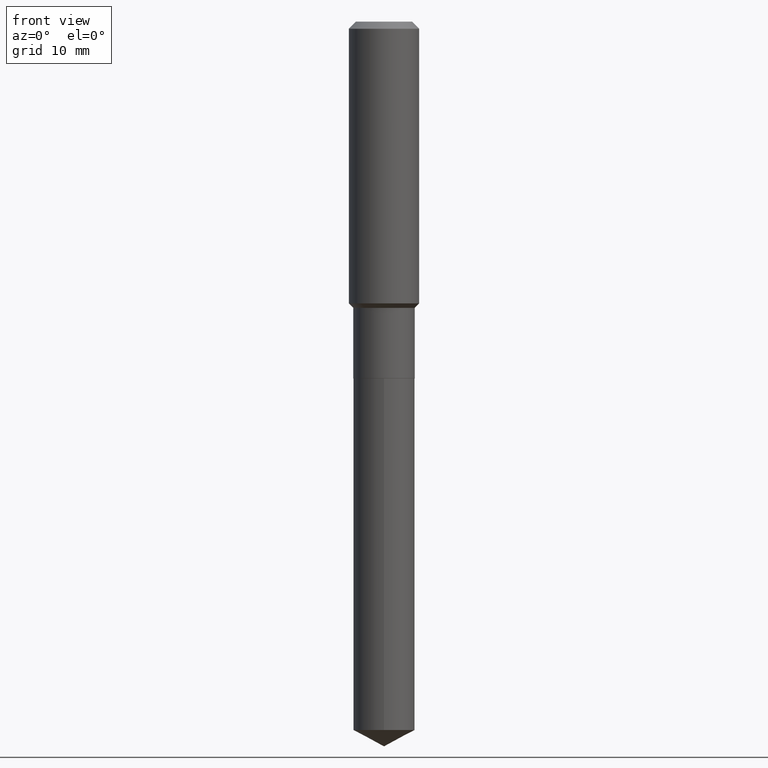
[diagram: clean part render]
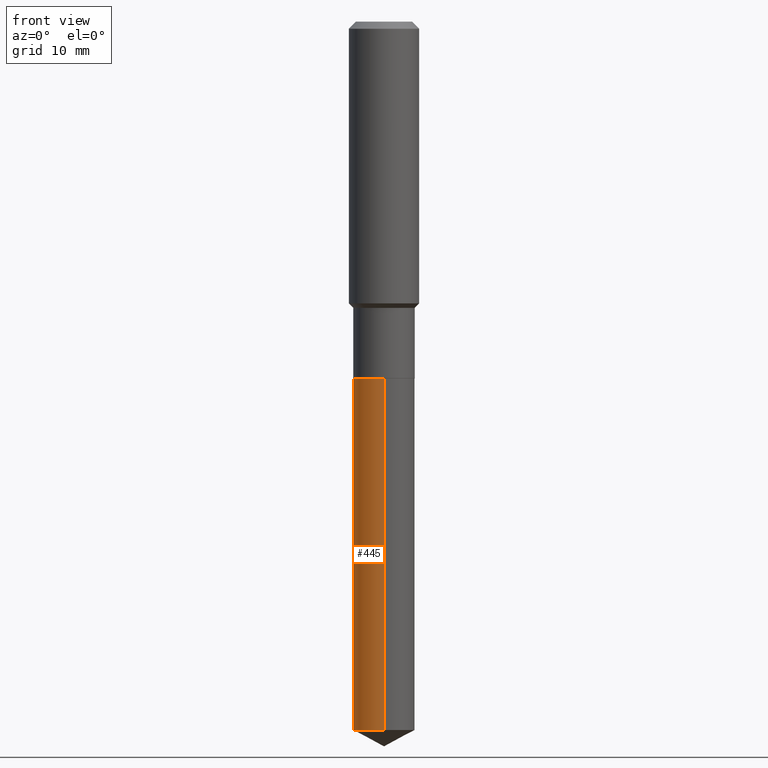
[diagram: same view with one face highlighted and labeled with its STEP entity id]
A machine part, front view. The second image highlights one B-rep face of the part: STEP entity #445.
In plain terms, the highlighted cylindrical surface (edge-blend (fillet) strip) has radius 4.3663 mm, axis along (-0, 0, 1).
Its self-contained STEP definition (entity closure, byte-faithful):
#11 = CARTESIAN_POINT ( 'NONE',  ( 9.692852182386165404E-29, -1.383884090570368808E-14, -3.963599148697392494 ) ) ;
#12 = VERTEX_POINT ( 'NONE', #446 ) ;
#13 = DIRECTION ( 'NONE',  ( -6.982962677686266711E-15, -1.000000000000000000, 3.178415350394722068E-15 ) ) ;
#15 = VERTEX_POINT ( 'NONE', #371 ) ;
#36 = CARTESIAN_POINT ( 'NONE',  ( -1.200371284294220332E-15, -0.1719000000000069361, -1.996799999999999020 ) ) ;
#51 = CYLINDRICAL_SURFACE ( 'NONE', #465, 0.1718999999999999695 ) ;
#70 = CARTESIAN_POINT ( 'NONE',  ( 4.883112112190479937E-29, -6.971789937401991965E-15, -1.996799999999999686 ) ) ;
#78 = LINE ( 'NONE', #36, #386 ) ;
#92 = EDGE_CURVE ( 'NONE', #12, #360, #228, .T. ) ;
#102 = DIRECTION ( 'NONE',  ( -6.982962677686266711E-15, -1.000000000000000000, 3.178415350394722068E-15 ) ) ;
#107 = EDGE_CURVE ( 'NONE', #426, #15, #272, .T. ) ;
#117 = CARTESIAN_POINT ( 'NONE',  ( -1.200371284294172211E-15, -0.1719000000000137640, -3.963599148697392049 ) ) ;
#125 = FACE_OUTER_BOUND ( 'NONE', #345, .T. ) ;
#138 = AXIS2_PLACEMENT_3D ( 'NONE', #70, #213, #102 ) ;
#145 = ORIENTED_EDGE ( 'NONE', *, *, #481, .F. ) ;
#160 = CARTESIAN_POINT ( 'NONE',  ( 4.883112112190479937E-29, -6.971789937401991965E-15, -1.996799999999999686 ) ) ;
#188 = DIRECTION ( 'NONE',  ( -2.445465808433549493E-29, 3.491485631794039954E-15, 1.000000000000000000 ) ) ;
#202 = DIRECTION ( 'NONE',  ( -2.445465808433549493E-29, 3.491485631794039954E-15, 1.000000000000000000 ) ) ;
#213 = DIRECTION ( 'NONE',  ( -2.445465808433549493E-29, 3.491485631794039954E-15, 1.000000000000000000 ) ) ;
#228 = CIRCLE ( 'NONE', #321, 0.1718999999999999695 ) ;
#249 = LINE ( 'NONE', #429, #309 ) ;
#254 = ORIENTED_EDGE ( 'NONE', *, *, #107, .F. ) ;
#272 = CIRCLE ( 'NONE', #138, 0.1718999999999999695 ) ;
#306 = DIRECTION ( 'NONE',  ( -2.445465808433549493E-29, 3.491485631794039954E-15, 1.000000000000000000 ) ) ;
#309 = VECTOR ( 'NONE', #319, 39.37007874015748143 ) ;
#319 = DIRECTION ( 'NONE',  ( -2.445465808433549493E-29, 3.491485631794039954E-15, 1.000000000000000000 ) ) ;
#321 = AXIS2_PLACEMENT_3D ( 'NONE', #11, #202, #13 ) ;
#340 = EDGE_CURVE ( 'NONE', #360, #15, #78, .T. ) ;
#342 = CARTESIAN_POINT ( 'NONE',  ( 1.221422962771709230E-15, 0.1718999999999930028, -1.996800000000000130 ) ) ;
#345 = EDGE_LOOP ( 'NONE', ( #145, #348, #409, #254 ) ) ;
#348 = ORIENTED_EDGE ( 'NONE', *, *, #92, .T. ) ;
#360 = VERTEX_POINT ( 'NONE', #117 ) ;
#371 = CARTESIAN_POINT ( 'NONE',  ( -1.200371284294220332E-15, -0.1719000000000069361, -1.996799999999999020 ) ) ;
#386 = VECTOR ( 'NONE', #188, 39.37007874015748143 ) ;
#409 = ORIENTED_EDGE ( 'NONE', *, *, #340, .T. ) ;
#426 = VERTEX_POINT ( 'NONE', #342 ) ;
#429 = CARTESIAN_POINT ( 'NONE',  ( 1.221422962771660715E-15, 0.1718999999999930028, -1.996800000000000130 ) ) ;
#445 = ADVANCED_FACE ( 'NONE', ( #125 ), #51, .T. ) ;
#446 = CARTESIAN_POINT ( 'NONE',  ( 1.221422962771708638E-15, 0.1718999999999861472, -3.963599148697392938 ) ) ;
#457 = DIRECTION ( 'NONE',  ( -6.982962677686266711E-15, -1.000000000000000000, 3.178415350394722068E-15 ) ) ;
#465 = AXIS2_PLACEMENT_3D ( 'NONE', #160, #306, #457 ) ;
#481 = EDGE_CURVE ( 'NONE', #12, #426, #249, .T. ) ;